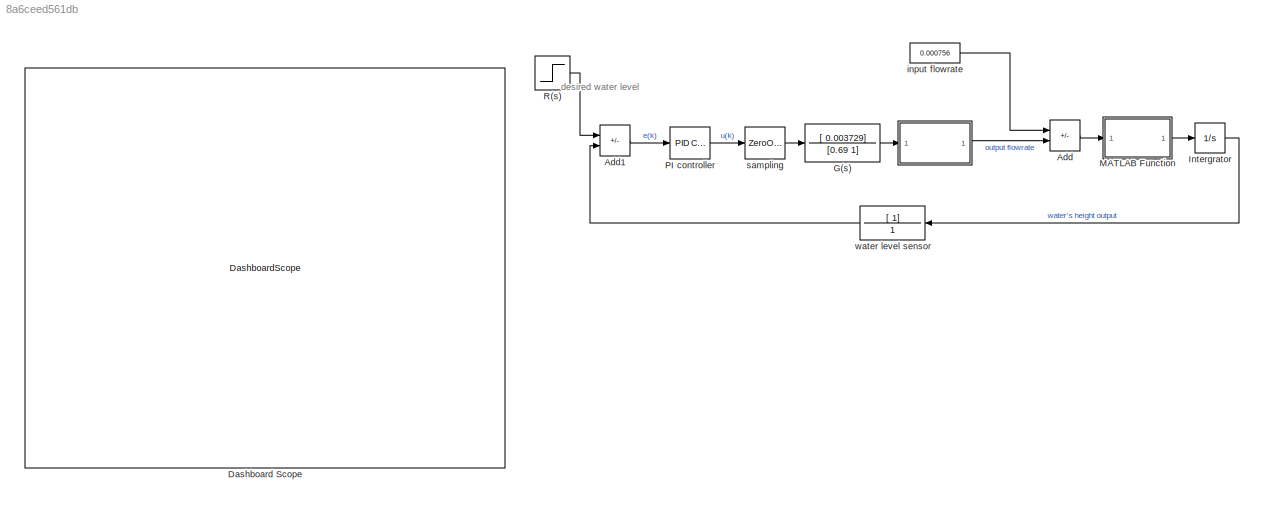
MODEL slx_8a6ceed561db
KIND model
CONFIG AbsTol = auto
CONFIG EnableMultiTasking = off
CONFIG FixedStep = auto
CONFIG MaxStep = auto
CONFIG MinStep = auto
CONFIG RelTol = 1e-3
CONFIG SampleTimeConstraint = Unconstrained
CONFIG SolverName = VariableStepAuto
CONFIG StartTime = 0.0
CONFIG StopTime = 30
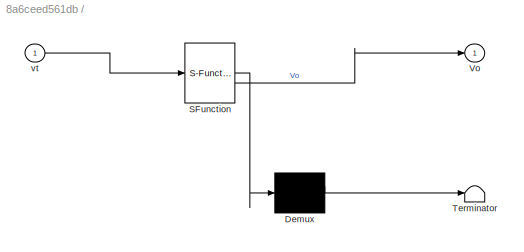
BLOCK [SubSystem]  
  ErrorFcn = Stateflow.Translate.translate
  LibrarySourceBlock = simulink/User-Defined\nFunctions/MATLAB Function
  PermitHierarchicalResolution = ExplicitOnly
  SFBlockType = MATLAB Function
  TreatAsAtomicUnit = on
BLOCK [Demux]  / Demux 
  Outputs = 1
BLOCK [S-Function]  / SFunction 
  EnableBusSupport = on
  FunctionName = sf_sfun
  PortCounts = [1 2]
  SFcnIsStateOwnerBlock = off
  SFunctionDeploymentMode = off
  Tag = Stateflow S-Function 2
BLOCK [Terminator]  / Terminator 
BLOCK [Outport]  /Vo
BLOCK [Inport]  /vt
BLOCK [Constant]  input flowrate
  Value = 0.000756
BLOCK [Sum] Add
  IconShape = rectangular
  Inputs = +-
BLOCK [Sum] Add1
  IconShape = rectangular
  Inputs = +-
BLOCK [DashboardScope] Dashboard Scope
BLOCK [TransferFcn] G(s)
  Denominator = [0.69 1]
  Numerator = [  0.003729]
BLOCK [Integrator] Intergrator
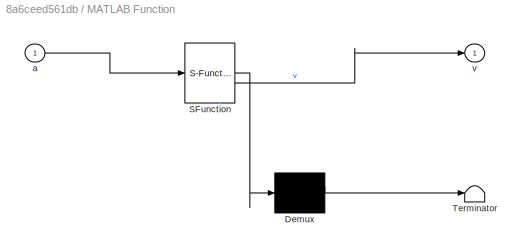
BLOCK [SubSystem] MATLAB Function
  ErrorFcn = Stateflow.Translate.translate
  LibrarySourceBlock = simulink/User-Defined\nFunctions/MATLAB Function
  PermitHierarchicalResolution = ExplicitOnly
  SFBlockType = MATLAB Function
  TreatAsAtomicUnit = on
BLOCK [Demux] MATLAB Function/ Demux 
  Outputs = 1
BLOCK [S-Function] MATLAB Function/ SFunction 
  EnableBusSupport = on
  FunctionName = sf_sfun
  PortCounts = [1 2]
  SFcnIsStateOwnerBlock = off
  SFunctionDeploymentMode = off
  Tag = Stateflow S-Function 1
BLOCK [Terminator] MATLAB Function/ Terminator 
BLOCK [Inport] MATLAB Function/a
BLOCK [Outport] MATLAB Function/v
BLOCK [Reference] PI controller  REF=slpidlib/PID Controller
  LibrarySourceBlock = simulink/Continuous/PID Controller
  SourceBlock = slpidlib/PID Controller
  SourceType = PID 1dof
BLOCK [Step] R(s)
  After = 60
  SampleTime = 0
BLOCK [ZeroOrderHold] sampling
  SampleTime = 0.1
BLOCK [TransferFcn] water level sensor
  Denominator = 1
  Numerator = [ 1]
ANNOTATION (root): desired water level
LINE  :1 -> Add:2
LINE  input flowrate:1 -> Add:1
LINE Add1:1 -> PI controller:1
LINE Add:1 -> MATLAB Function:1
LINE G(s):1 ->  :1
LINE Intergrator:1 -> water level sensor:1
LINE MATLAB Function:1 -> Intergrator:1
LINE PI controller:1 -> sampling:1
LINE R(s):1 -> Add1:1
LINE sampling:1 -> G(s):1
LINE water level sensor:1 -> Add1:2
CHART   states=1 transitions=1
  STATE_LABEL 'eML_blk_kernel()'
  STATE_LABEL 'SCRIPT:\nfunction Vo = fnc(vt)\n\nVo = -pi*(0.2244^ 2)*vt; \n\n'
CHART MATLAB Function states=1 transitions=1
  STATE_LABEL 'eML_blk_kernel()'
  STATE_LABEL 'SCRIPT:\nfunction v = Dynamics(a)\n\nv= a/(pi*(0.2244^ 2));\n\n\n'
CHART  states=0 transitions=0
CHART  states=0 transitions=0
